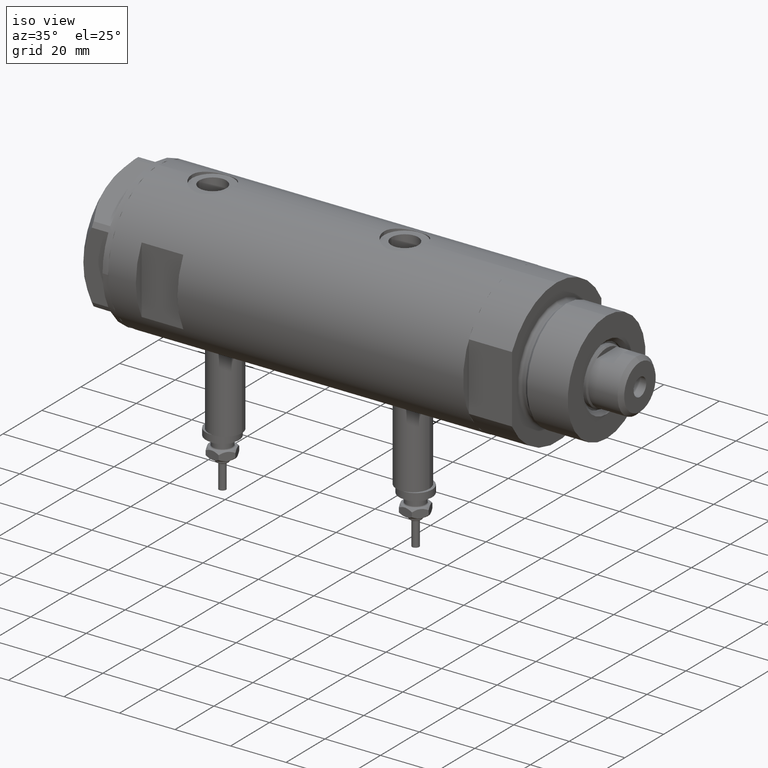
[diagram: clean part render]
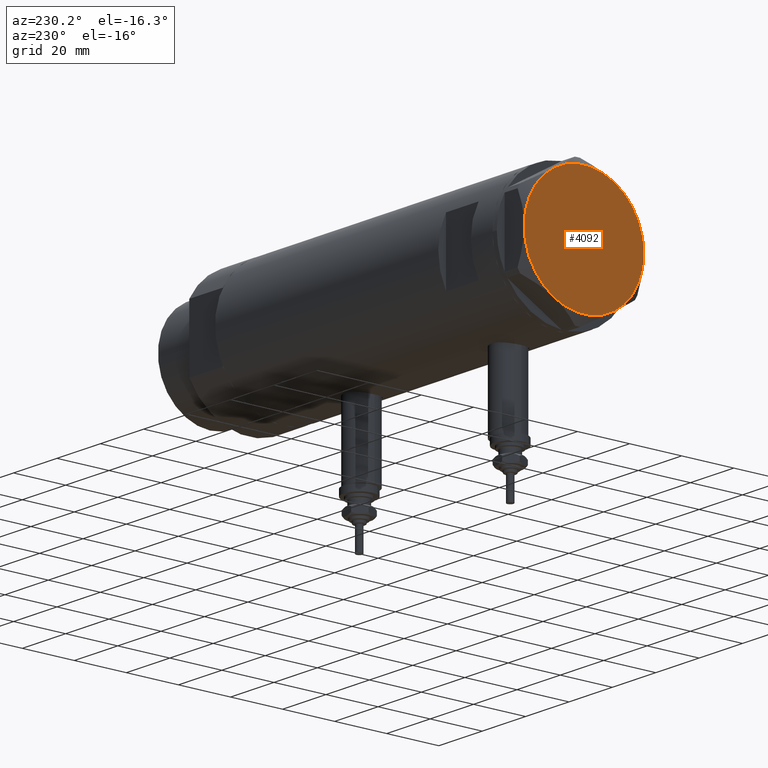
[diagram: tour spotlight — one face highlighted and labeled with its STEP entity id]
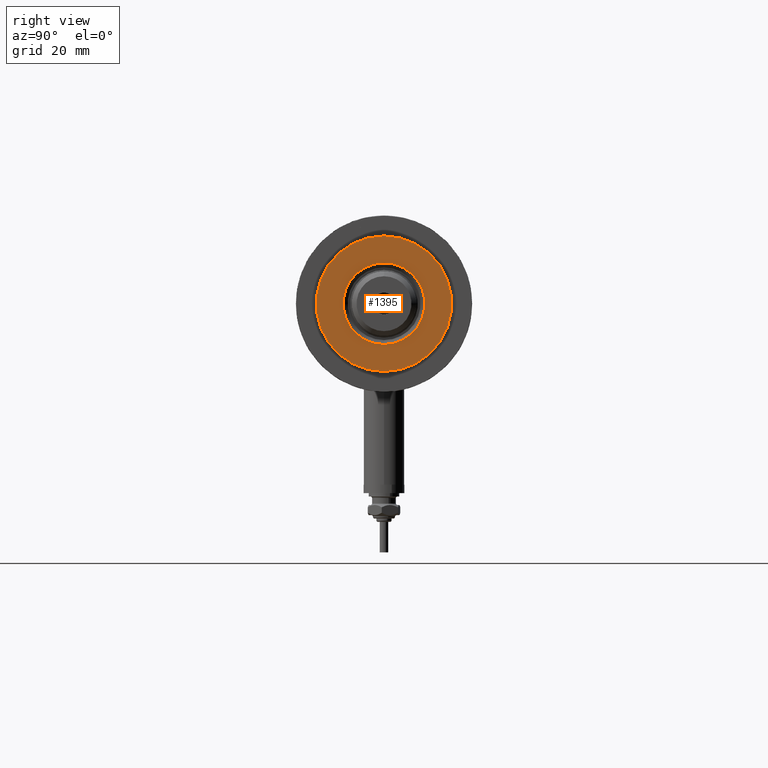
[diagram: tour spotlight — one face highlighted and labeled with its STEP entity id]
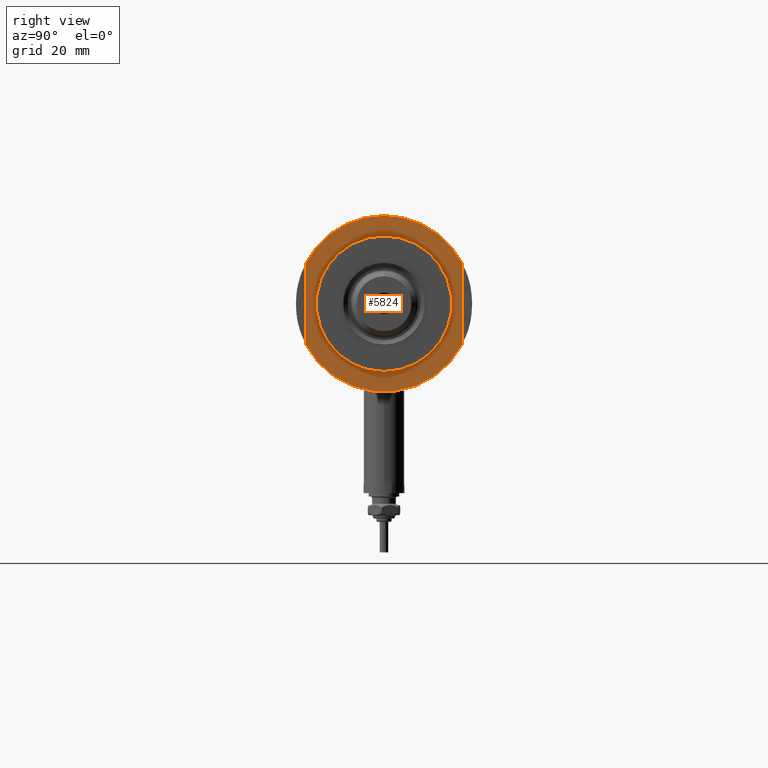
[diagram: tour spotlight — one face highlighted and labeled with its STEP entity id]
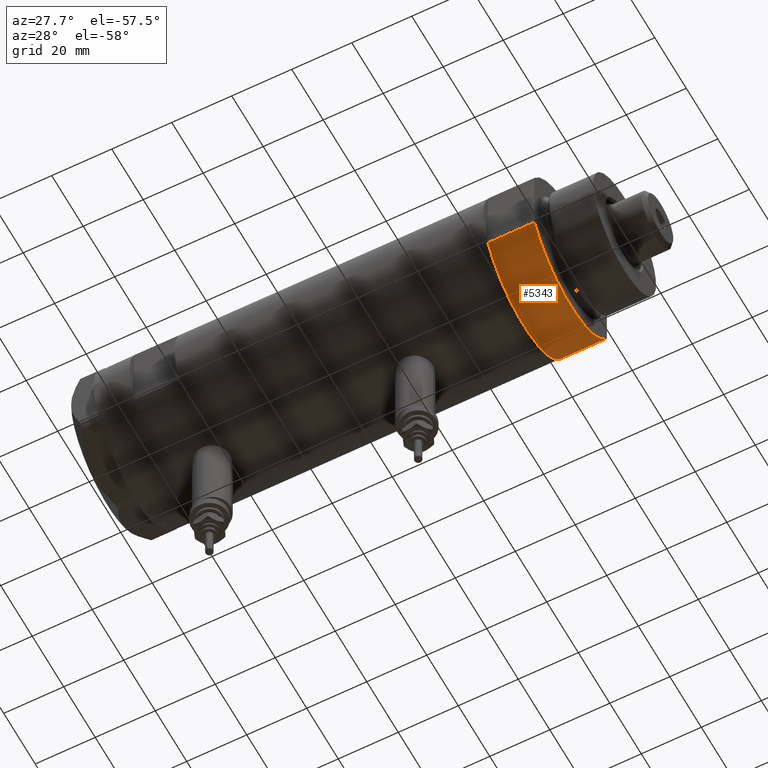
[diagram: tour spotlight — one face highlighted and labeled with its STEP entity id]
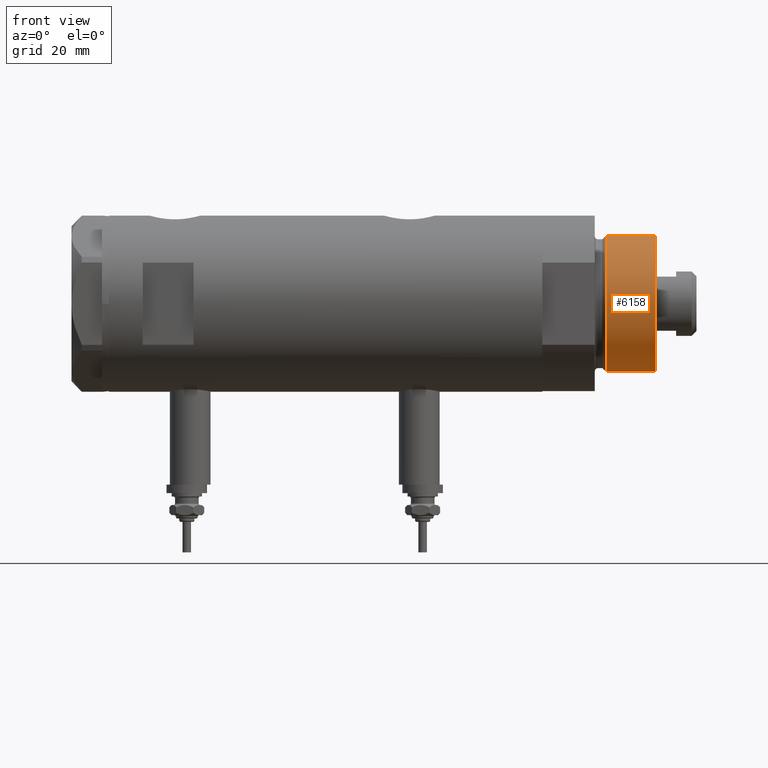
[diagram: tour spotlight — one face highlighted and labeled with its STEP entity id]
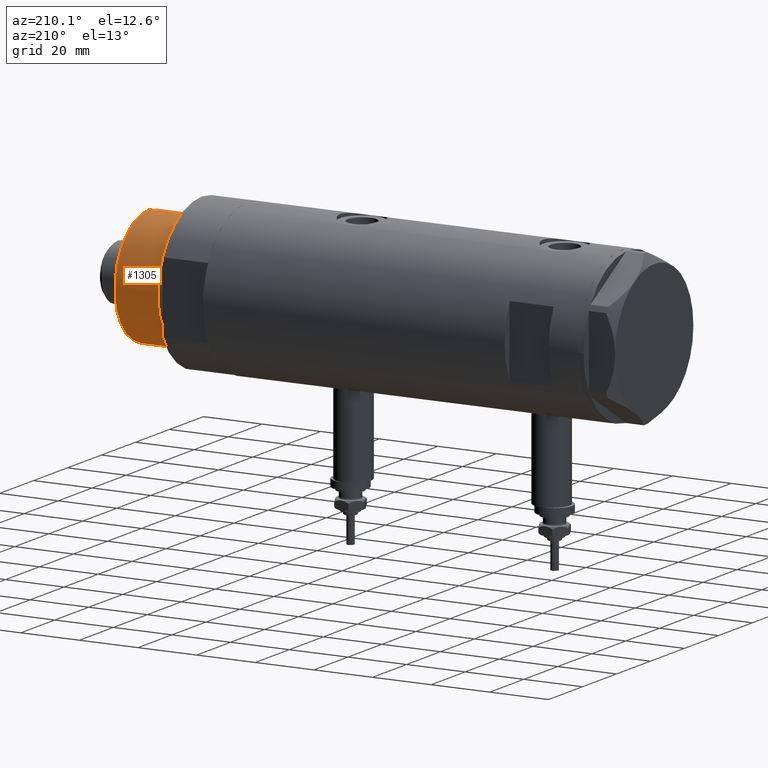
[diagram: tour spotlight — one face highlighted and labeled with its STEP entity id]
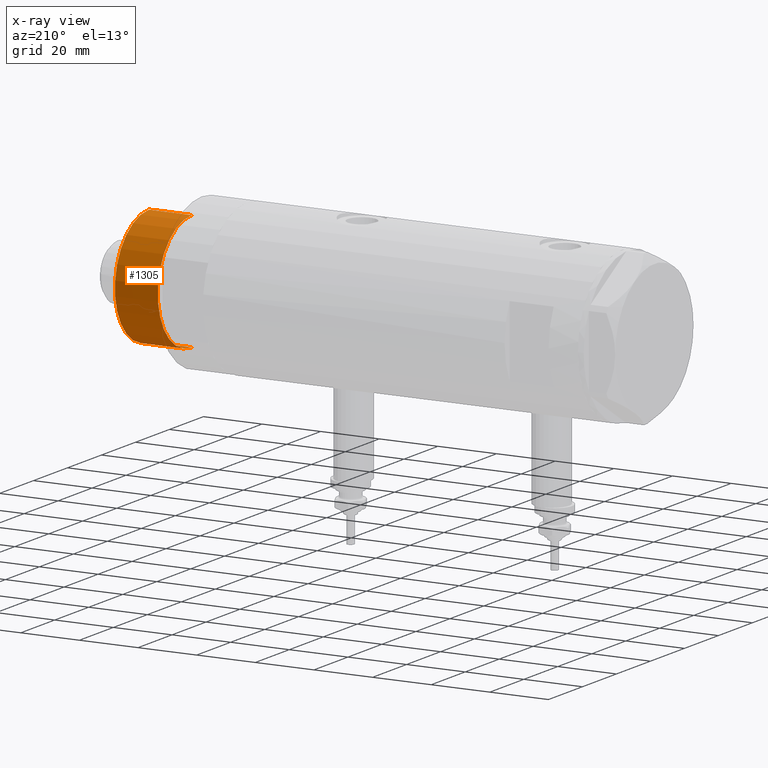
[diagram: x-ray of the same camera — body ghosted, this tour face saturated]
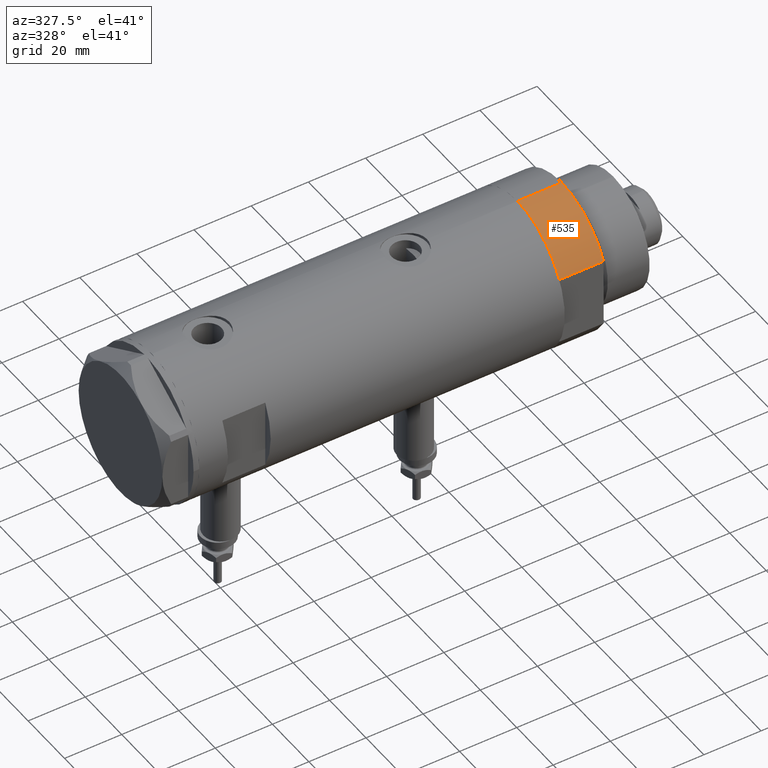
[diagram: tour spotlight — one face highlighted and labeled with its STEP entity id]
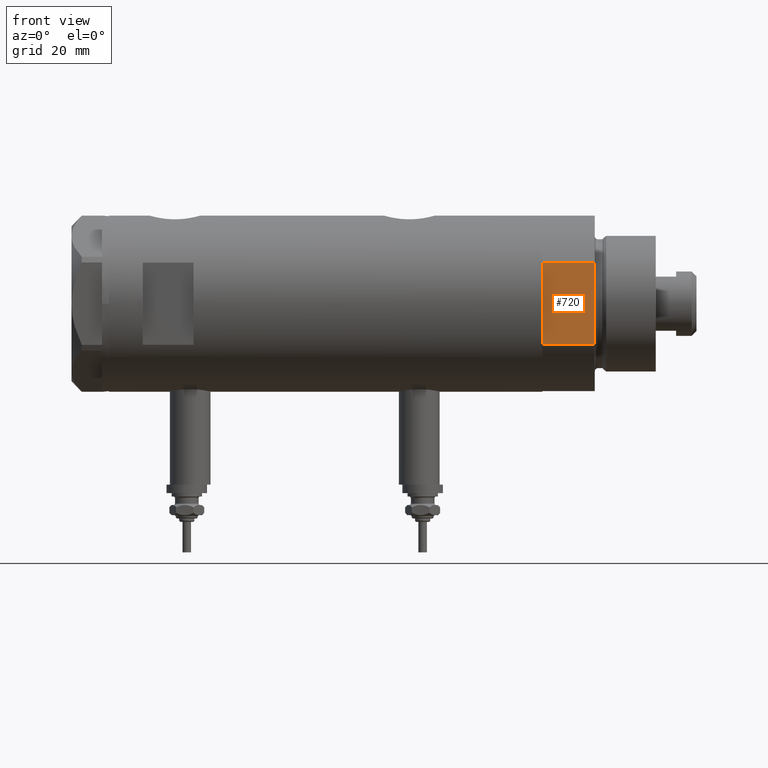
[diagram: tour spotlight — one face highlighted and labeled with its STEP entity id]
A machine part: a face-by-face anatomy tour. The part has 226 B-rep faces; the first image is the clean iso view, then the 8 largest visible faces are spotlighted one at a time (largest first), each with its STEP entity span.

Face 1 — auxiliary view, entity #4092. In plain terms, the highlighted planar face has unit normal (-1, -0, 0).
Definition (entity closure, byte-faithful):
#220 = PLANE ( 'NONE',  #4351 ) ;
#273 = VERTEX_POINT ( 'NONE', #5845 ) ;
#277 = VERTEX_POINT ( 'NONE', #1484 ) ;
#574 = FACE_OUTER_BOUND ( 'NONE', #5716, .T. ) ;
#755 = CARTESIAN_POINT ( 'NONE',  ( -11.50000000000004441, 19.91858428704211548, 9.000000000000000000 ) ) ;
#1076 = CARTESIAN_POINT ( 'NONE',  ( 0.000000000000000000, 0.000000000000000000, 9.000000000000000000 ) ) ;
#1104 = CIRCLE ( 'NONE', #4655, 23.00000000000004619 ) ;
#1193 = EDGE_CURVE ( 'NONE', #6245, #273, #1283, .T. ) ;
#1283 = CIRCLE ( 'NONE', #1575, 23.00000000000004619 ) ;
#1484 = CARTESIAN_POINT ( 'NONE',  ( 22.99999999999995026, 2.373657066004705010E-13, 9.000000000000000000 ) ) ;
#1575 = AXIS2_PLACEMENT_3D ( 'NONE', #5171, #5753, #1895 ) ;
#1840 = EDGE_CURVE ( 'NONE', #277, #2344, #2979, .T. ) ;
#1895 = DIRECTION ( 'NONE',  ( 1.000000000000000000, 0.000000000000000000, 0.000000000000000000 ) ) ;
#2176 = AXIS2_PLACEMENT_3D ( 'NONE', #4022, #4618, #4091 ) ;
#2202 = CARTESIAN_POINT ( 'NONE',  ( 0.000000000000000000, 0.000000000000000000, 9.000000000000000000 ) ) ;
#2227 = CIRCLE ( 'NONE', #5892, 23.00000000000004619 ) ;
#2295 = DIRECTION ( 'NONE',  ( 1.000000000000000000, 0.000000000000000000, -0.000000000000000000 ) ) ;
#2344 = VERTEX_POINT ( 'NONE', #2743 ) ;
#2430 = ORIENTED_EDGE ( 'NONE', *, *, #5894, .T. ) ;
#2648 = CARTESIAN_POINT ( 'NONE',  ( 0.000000000000000000, 0.000000000000000000, 9.000000000000000000 ) ) ;
#2743 = CARTESIAN_POINT ( 'NONE',  ( 11.49999999999990408, 19.91858428704219364, 9.000000000000000000 ) ) ;
#2979 = CIRCLE ( 'NONE', #2176, 23.00000000000004619 ) ;
#3208 = ORIENTED_EDGE ( 'NONE', *, *, #1840, .T. ) ;
#3508 = DIRECTION ( 'NONE',  ( 1.000000000000000000, 0.000000000000000000, 0.000000000000000000 ) ) ;
#3554 = DIRECTION ( 'NONE',  ( 0.000000000000000000, 0.000000000000000000, 1.000000000000000000 ) ) ;
#3633 = CIRCLE ( 'NONE', #6208, 23.00000000000004619 ) ;
#3671 = DIRECTION ( 'NONE',  ( 1.000000000000000000, 0.000000000000000000, 0.000000000000000000 ) ) ;
#3995 = CARTESIAN_POINT ( 'NONE',  ( 0.000000000000000000, 0.000000000000000000, 9.000000000000000000 ) ) ;
#4022 = CARTESIAN_POINT ( 'NONE',  ( 0.000000000000000000, 0.000000000000000000, 9.000000000000000000 ) ) ;
#4091 = DIRECTION ( 'NONE',  ( 1.000000000000000000, 0.000000000000000000, 0.000000000000000000 ) ) ;
#4092 = ADVANCED_FACE ( 'NONE', ( #574 ), #220, .T. ) ;
#4106 = DIRECTION ( 'NONE',  ( 0.000000000000000000, 0.000000000000000000, 1.000000000000000000 ) ) ;
#4139 = DIRECTION ( 'NONE',  ( 1.000000000000000000, 0.000000000000000000, 0.000000000000000000 ) ) ;
#4162 = DIRECTION ( 'NONE',  ( 0.000000000000000000, 0.000000000000000000, 1.000000000000000000 ) ) ;
#4178 = CARTESIAN_POINT ( 'NONE',  ( 0.000000000000000000, 0.000000000000000000, 9.000000000000000000 ) ) ;
#4270 = AXIS2_PLACEMENT_3D ( 'NONE', #3995, #5940, #3508 ) ;
#4351 = AXIS2_PLACEMENT_3D ( 'NONE', #2202, #4162, #2295 ) ;
#4483 = CARTESIAN_POINT ( 'NONE',  ( -11.49999999999990585, -19.91858428704219364, 9.000000000000000000 ) ) ;
#4618 = DIRECTION ( 'NONE',  ( 0.000000000000000000, 0.000000000000000000, 1.000000000000000000 ) ) ;
#4655 = AXIS2_PLACEMENT_3D ( 'NONE', #1076, #3554, #4839 ) ;
#4834 = VERTEX_POINT ( 'NONE', #755 ) ;
#4839 = DIRECTION ( 'NONE',  ( 1.000000000000000000, 0.000000000000000000, 0.000000000000000000 ) ) ;
#4904 = ORIENTED_EDGE ( 'NONE', *, *, #6260, .T. ) ;
#5063 = CIRCLE ( 'NONE', #4270, 23.00000000000004619 ) ;
#5093 = EDGE_CURVE ( 'NONE', #4834, #6050, #2227, .T. ) ;
#5171 = CARTESIAN_POINT ( 'NONE',  ( 0.000000000000000000, 0.000000000000000000, 9.000000000000000000 ) ) ;
#5228 = ORIENTED_EDGE ( 'NONE', *, *, #5535, .T. ) ;
#5535 = EDGE_CURVE ( 'NONE', #6050, #6245, #3633, .T. ) ;
#5575 = ORIENTED_EDGE ( 'NONE', *, *, #1193, .T. ) ;
#5716 = EDGE_LOOP ( 'NONE', ( #2430, #3208, #4904, #5876, #5228, #5575 ) ) ;
#5753 = DIRECTION ( 'NONE',  ( 0.000000000000000000, 0.000000000000000000, 1.000000000000000000 ) ) ;
#5845 = CARTESIAN_POINT ( 'NONE',  ( 11.50000000000018296, -19.91858428704203732, 9.000000000000000000 ) ) ;
#5876 = ORIENTED_EDGE ( 'NONE', *, *, #5093, .T. ) ;
#5892 = AXIS2_PLACEMENT_3D ( 'NONE', #4178, #4106, #4139 ) ;
#5894 = EDGE_CURVE ( 'NONE', #273, #277, #5063, .T. ) ;
#5940 = DIRECTION ( 'NONE',  ( 0.000000000000000000, 0.000000000000000000, 1.000000000000000000 ) ) ;
#6050 = VERTEX_POINT ( 'NONE', #6254 ) ;
#6111 = DIRECTION ( 'NONE',  ( 0.000000000000000000, 0.000000000000000000, 1.000000000000000000 ) ) ;
#6208 = AXIS2_PLACEMENT_3D ( 'NONE', #2648, #6111, #3671 ) ;
#6245 = VERTEX_POINT ( 'NONE', #4483 ) ;
#6254 = CARTESIAN_POINT ( 'NONE',  ( -23.00000000000004619, -8.112498833180673323E-14, 9.000000000000000000 ) ) ;
#6260 = EDGE_CURVE ( 'NONE', #2344, #4834, #1104, .T. ) ;

Face 2 — right view, entity #1395. In plain terms, the highlighted planar face has unit normal (1, 0, -0).
Definition (entity closure, byte-faithful):
#279 = AXIS2_PLACEMENT_3D ( 'NONE', #1357, #5204, #3279 ) ;
#341 = DIRECTION ( 'NONE',  ( 1.000000000000000000, 0.000000000000000000, 0.000000000000000000 ) ) ;
#425 = EDGE_CURVE ( 'NONE', #4596, #4561, #645, .T. ) ;
#441 = FACE_BOUND ( 'NONE', #3750, .T. ) ;
#619 = CARTESIAN_POINT ( 'NONE',  ( 0.000000000000000000, 0.000000000000000000, 33.50000000000000000 ) ) ;
#645 = CIRCLE ( 'NONE', #1162, 19.99999999999999645 ) ;
#874 = FACE_OUTER_BOUND ( 'NONE', #3715, .T. ) ;
#883 = CARTESIAN_POINT ( 'NONE',  ( -19.99999999999999645, 0.000000000000000000, 33.50000000000000000 ) ) ;
#953 = CARTESIAN_POINT ( 'NONE',  ( 0.000000000000000000, 0.000000000000000000, 33.50000000000000000 ) ) ;
#1152 = CARTESIAN_POINT ( 'NONE',  ( -12.05000000000000426, 1.475699392972560823E-15, 33.50000000000000000 ) ) ;
#1162 = AXIS2_PLACEMENT_3D ( 'NONE', #4381, #4346, #6302 ) ;
#1240 = VERTEX_POINT ( 'NONE', #1152 ) ;
#1357 = CARTESIAN_POINT ( 'NONE',  ( 0.000000000000000000, 0.000000000000000000, 33.50000000000000000 ) ) ;
#1395 = ADVANCED_FACE ( 'NONE', ( #441, #874 ), #4285, .T. ) ;
#1812 = CARTESIAN_POINT ( 'NONE',  ( 0.000000000000000000, 0.000000000000000000, 33.50000000000000000 ) ) ;
#2775 = CARTESIAN_POINT ( 'NONE',  ( 12.05000000000000426, 0.000000000000000000, 33.50000000000000000 ) ) ;
#2804 = DIRECTION ( 'NONE',  ( 1.000000000000000000, 0.000000000000000000, 0.000000000000000000 ) ) ;
#3007 = CIRCLE ( 'NONE', #5168, 12.05000000000000426 ) ;
#3011 = CIRCLE ( 'NONE', #279, 19.99999999999999645 ) ;
#3036 = ORIENTED_EDGE ( 'NONE', *, *, #6230, .T. ) ;
#3279 = DIRECTION ( 'NONE',  ( 1.000000000000000000, 0.000000000000000000, 0.000000000000000000 ) ) ;
#3420 = EDGE_CURVE ( 'NONE', #5195, #1240, #4141, .T. ) ;
#3715 = EDGE_LOOP ( 'NONE', ( #3036, #5461 ) ) ;
#3750 = EDGE_LOOP ( 'NONE', ( #4470, #4094 ) ) ;
#3806 = DIRECTION ( 'NONE',  ( -0.000000000000000000, -0.000000000000000000, -1.000000000000000000 ) ) ;
#4073 = EDGE_CURVE ( 'NONE', #1240, #5195, #3007, .T. ) ;
#4094 = ORIENTED_EDGE ( 'NONE', *, *, #4073, .T. ) ;
#4141 = CIRCLE ( 'NONE', #5864, 12.05000000000000426 ) ;
#4285 = PLANE ( 'NONE',  #6257 ) ;
#4346 = DIRECTION ( 'NONE',  ( 0.000000000000000000, 0.000000000000000000, 1.000000000000000000 ) ) ;
#4381 = CARTESIAN_POINT ( 'NONE',  ( 0.000000000000000000, 0.000000000000000000, 33.50000000000000000 ) ) ;
#4470 = ORIENTED_EDGE ( 'NONE', *, *, #3420, .T. ) ;
#4561 = VERTEX_POINT ( 'NONE', #883 ) ;
#4596 = VERTEX_POINT ( 'NONE', #5823 ) ;
#5168 = AXIS2_PLACEMENT_3D ( 'NONE', #619, #5240, #2804 ) ;
#5195 = VERTEX_POINT ( 'NONE', #2775 ) ;
#5204 = DIRECTION ( 'NONE',  ( 0.000000000000000000, 0.000000000000000000, 1.000000000000000000 ) ) ;
#5240 = DIRECTION ( 'NONE',  ( -0.000000000000000000, -0.000000000000000000, -1.000000000000000000 ) ) ;
#5272 = DIRECTION ( 'NONE',  ( 0.000000000000000000, 0.000000000000000000, 1.000000000000000000 ) ) ;
#5461 = ORIENTED_EDGE ( 'NONE', *, *, #425, .T. ) ;
#5823 = CARTESIAN_POINT ( 'NONE',  ( 19.99999999999999645, 2.449293598294706119E-15, 33.50000000000000000 ) ) ;
#5864 = AXIS2_PLACEMENT_3D ( 'NONE', #953, #3806, #341 ) ;
#6230 = EDGE_CURVE ( 'NONE', #4561, #4596, #3011, .T. ) ;
#6233 = DIRECTION ( 'NONE',  ( 1.000000000000000000, 0.000000000000000000, -0.000000000000000000 ) ) ;
#6257 = AXIS2_PLACEMENT_3D ( 'NONE', #1812, #5272, #6233 ) ;
#6302 = DIRECTION ( 'NONE',  ( 1.000000000000000000, 0.000000000000000000, 0.000000000000000000 ) ) ;

Face 3 — right view, entity #5824. In plain terms, the highlighted planar face has unit normal (1, 0, -0).
Definition (entity closure, byte-faithful):
#73 = FACE_OUTER_BOUND ( 'NONE', #5597, .T. ) ;
#76 = CIRCLE ( 'NONE', #4163, 26.00000000000000355 ) ;
#106 = CARTESIAN_POINT ( 'NONE',  ( 20.00000000000000000, 0.000000000000000000, 15.50000000000000000 ) ) ;
#226 = DIRECTION ( 'NONE',  ( 0.000000000000000000, 0.000000000000000000, 1.000000000000000000 ) ) ;
#233 = ORIENTED_EDGE ( 'NONE', *, *, #2287, .F. ) ;
#364 = CIRCLE ( 'NONE', #4739, 26.00000000000000355 ) ;
#468 = VERTEX_POINT ( 'NONE', #1654 ) ;
#502 = ORIENTED_EDGE ( 'NONE', *, *, #5999, .T. ) ;
#835 = ORIENTED_EDGE ( 'NONE', *, *, #3456, .T. ) ;
#1274 = CARTESIAN_POINT ( 'NONE',  ( 0.000000000000000000, 0.000000000000000000, 15.50000000000000000 ) ) ;
#1383 = EDGE_CURVE ( 'NONE', #2999, #3744, #2677, .T. ) ;
#1419 = AXIS2_PLACEMENT_3D ( 'NONE', #2183, #4957, #5477 ) ;
#1466 = EDGE_LOOP ( 'NONE', ( #5222, #4890 ) ) ;
#1546 = FACE_BOUND ( 'NONE', #1466, .T. ) ;
#1654 = CARTESIAN_POINT ( 'NONE',  ( -12.12435565298215323, -22.99999999999999645, 15.50000000000000000 ) ) ;
#1757 = DIRECTION ( 'NONE',  ( 1.000000000000000000, 0.000000000000000000, 0.000000000000000000 ) ) ;
#1771 = ORIENTED_EDGE ( 'NONE', *, *, #4424, .T. ) ;
#1793 = AXIS2_PLACEMENT_3D ( 'NONE', #2393, #4354, #5235 ) ;
#2014 = CIRCLE ( 'NONE', #5784, 26.00000000000000355 ) ;
#2183 = CARTESIAN_POINT ( 'NONE',  ( 0.000000000000000000, 0.000000000000000000, 15.50000000000000000 ) ) ;
#2287 = EDGE_CURVE ( 'NONE', #3274, #4881, #5045, .T. ) ;
#2371 = CARTESIAN_POINT ( 'NONE',  ( 12.12435565298215323, -22.99999999999999645, 15.50000000000000000 ) ) ;
#2383 = VERTEX_POINT ( 'NONE', #2371 ) ;
#2393 = CARTESIAN_POINT ( 'NONE',  ( 0.000000000000000000, 0.000000000000000000, 15.50000000000000000 ) ) ;
#2677 = CIRCLE ( 'NONE', #1793, 20.00000000000000000 ) ;
#2999 = VERTEX_POINT ( 'NONE', #4891 ) ;
#3274 = VERTEX_POINT ( 'NONE', #6060 ) ;
#3292 = CARTESIAN_POINT ( 'NONE',  ( -26.00000000000000355, 0.000000000000000000, 15.50000000000000000 ) ) ;
#3359 = DIRECTION ( 'NONE',  ( 0.000000000000000000, 0.000000000000000000, 1.000000000000000000 ) ) ;
#3456 = EDGE_CURVE ( 'NONE', #3274, #5580, #364, .T. ) ;
#3582 = ORIENTED_EDGE ( 'NONE', *, *, #3684, .F. ) ;
#3684 = EDGE_CURVE ( 'NONE', #2383, #468, #5835, .T. ) ;
#3744 = VERTEX_POINT ( 'NONE', #106 ) ;
#3962 = CARTESIAN_POINT ( 'NONE',  ( 0.000000000000000000, 0.000000000000000000, 15.50000000000000000 ) ) ;
#4034 = DIRECTION ( 'NONE',  ( 0.000000000000000000, 0.000000000000000000, 1.000000000000000000 ) ) ;
#4095 = CARTESIAN_POINT ( 'NONE',  ( -12.12435565298215145, 23.00000000000000355, 15.50000000000000000 ) ) ;
#4163 = AXIS2_PLACEMENT_3D ( 'NONE', #1274, #226, #1757 ) ;
#4273 = DIRECTION ( 'NONE',  ( 1.000000000000000000, 0.000000000000000000, 0.000000000000000000 ) ) ;
#4354 = DIRECTION ( 'NONE',  ( -0.000000000000000000, -0.000000000000000000, -1.000000000000000000 ) ) ;
#4424 = EDGE_CURVE ( 'NONE', #5580, #468, #2014, .T. ) ;
#4508 = PLANE ( 'NONE',  #5582 ) ;
#4509 = EDGE_CURVE ( 'NONE', #3744, #2999, #6089, .T. ) ;
#4571 = DIRECTION ( 'NONE',  ( 1.000000000000000000, 0.000000000000000000, 0.000000000000000000 ) ) ;
#4574 = DIRECTION ( 'NONE',  ( 1.000000000000000000, 0.000000000000000000, -0.000000000000000000 ) ) ;
#4626 = VECTOR ( 'NONE', #4571, 1000.000000000000000 ) ;
#4737 = CARTESIAN_POINT ( 'NONE',  ( 0.000000000000000000, 0.000000000000000000, 15.50000000000000000 ) ) ;
#4739 = AXIS2_PLACEMENT_3D ( 'NONE', #4737, #5736, #4273 ) ;
#4881 = VERTEX_POINT ( 'NONE', #5143 ) ;
#4890 = ORIENTED_EDGE ( 'NONE', *, *, #1383, .T. ) ;
#4891 = CARTESIAN_POINT ( 'NONE',  ( -20.00000000000000000, 2.449293598294706513E-15, 15.50000000000000000 ) ) ;
#4957 = DIRECTION ( 'NONE',  ( -0.000000000000000000, -0.000000000000000000, -1.000000000000000000 ) ) ;
#5045 = LINE ( 'NONE', #4095, #4626 ) ;
#5143 = CARTESIAN_POINT ( 'NONE',  ( 12.12435565298214790, 23.00000000000000355, 15.50000000000000000 ) ) ;
#5222 = ORIENTED_EDGE ( 'NONE', *, *, #4509, .T. ) ;
#5235 = DIRECTION ( 'NONE',  ( 1.000000000000000000, 0.000000000000000000, 0.000000000000000000 ) ) ;
#5267 = CARTESIAN_POINT ( 'NONE',  ( -12.12435565298215145, -22.99999999999999645, 15.50000000000000000 ) ) ;
#5315 = DIRECTION ( 'NONE',  ( 1.000000000000000000, 0.000000000000000000, 0.000000000000000000 ) ) ;
#5359 = VECTOR ( 'NONE', #5811, 1000.000000000000000 ) ;
#5477 = DIRECTION ( 'NONE',  ( 1.000000000000000000, 0.000000000000000000, 0.000000000000000000 ) ) ;
#5580 = VERTEX_POINT ( 'NONE', #3292 ) ;
#5582 = AXIS2_PLACEMENT_3D ( 'NONE', #3962, #4034, #4574 ) ;
#5597 = EDGE_LOOP ( 'NONE', ( #3582, #502, #233, #835, #1771 ) ) ;
#5736 = DIRECTION ( 'NONE',  ( 0.000000000000000000, 0.000000000000000000, 1.000000000000000000 ) ) ;
#5784 = AXIS2_PLACEMENT_3D ( 'NONE', #5802, #3359, #5315 ) ;
#5802 = CARTESIAN_POINT ( 'NONE',  ( 0.000000000000000000, 0.000000000000000000, 15.50000000000000000 ) ) ;
#5811 = DIRECTION ( 'NONE',  ( -1.000000000000000000, -0.000000000000000000, -0.000000000000000000 ) ) ;
#5824 = ADVANCED_FACE ( 'NONE', ( #1546, #73 ), #4508, .T. ) ;
#5835 = LINE ( 'NONE', #5267, #5359 ) ;
#5999 = EDGE_CURVE ( 'NONE', #2383, #4881, #76, .T. ) ;
#6060 = CARTESIAN_POINT ( 'NONE',  ( -12.12435565298214613, 23.00000000000000355, 15.50000000000000000 ) ) ;
#6089 = CIRCLE ( 'NONE', #1419, 20.00000000000000000 ) ;

Face 4 — auxiliary view, entity #5343. In plain terms, the highlighted cylindrical surface (partial cylindrical patch) has radius 26 mm, axis along (-1, -0, 0).
Definition (entity closure, byte-faithful):
#76 = CIRCLE ( 'NONE', #4163, 26.00000000000000355 ) ;
#113 = DIRECTION ( 'NONE',  ( -1.000000000000000000, 0.000000000000000000, 0.000000000000000000 ) ) ;
#183 = ORIENTED_EDGE ( 'NONE', *, *, #1867, .T. ) ;
#226 = DIRECTION ( 'NONE',  ( 0.000000000000000000, 0.000000000000000000, 1.000000000000000000 ) ) ;
#267 = DIRECTION ( 'NONE',  ( -0.000000000000000000, -0.000000000000000000, 1.000000000000000000 ) ) ;
#671 = FACE_OUTER_BOUND ( 'NONE', #3772, .T. ) ;
#756 = CARTESIAN_POINT ( 'NONE',  ( 12.12435565298215323, 23.00000000000000355, 0.000000000000000000 ) ) ;
#1000 = ORIENTED_EDGE ( 'NONE', *, *, #3878, .T. ) ;
#1065 = AXIS2_PLACEMENT_3D ( 'NONE', #5000, #5036, #3116 ) ;
#1088 = EDGE_CURVE ( 'NONE', #6307, #2383, #5564, .T. ) ;
#1179 = ORIENTED_EDGE ( 'NONE', *, *, #1088, .F. ) ;
#1274 = CARTESIAN_POINT ( 'NONE',  ( 0.000000000000000000, 0.000000000000000000, 15.50000000000000000 ) ) ;
#1753 = DIRECTION ( 'NONE',  ( -0.000000000000000000, -0.000000000000000000, 1.000000000000000000 ) ) ;
#1757 = DIRECTION ( 'NONE',  ( 1.000000000000000000, 0.000000000000000000, 0.000000000000000000 ) ) ;
#1867 = EDGE_CURVE ( 'NONE', #6307, #3113, #6058, .T. ) ;
#2371 = CARTESIAN_POINT ( 'NONE',  ( 12.12435565298215323, -22.99999999999999645, 15.50000000000000000 ) ) ;
#2383 = VERTEX_POINT ( 'NONE', #2371 ) ;
#2532 = DIRECTION ( 'NONE',  ( -0.000000000000000000, -0.000000000000000000, -1.000000000000000000 ) ) ;
#2558 = CARTESIAN_POINT ( 'NONE',  ( 12.12435565298215323, -22.99999999999999645, 0.000000000000000000 ) ) ;
#2879 = VECTOR ( 'NONE', #1753, 1000.000000000000000 ) ;
#3113 = VERTEX_POINT ( 'NONE', #4136 ) ;
#3116 = DIRECTION ( 'NONE',  ( 1.000000000000000000, 0.000000000000000000, 0.000000000000000000 ) ) ;
#3772 = EDGE_LOOP ( 'NONE', ( #5982, #1179, #183, #1000 ) ) ;
#3878 = EDGE_CURVE ( 'NONE', #3113, #4881, #5112, .T. ) ;
#4014 = CYLINDRICAL_SURFACE ( 'NONE', #4462, 26.00000000000000355 ) ;
#4136 = CARTESIAN_POINT ( 'NONE',  ( 12.12435565298214080, 23.00000000000000355, 0.000000000000000000 ) ) ;
#4163 = AXIS2_PLACEMENT_3D ( 'NONE', #1274, #226, #1757 ) ;
#4437 = VECTOR ( 'NONE', #267, 1000.000000000000000 ) ;
#4462 = AXIS2_PLACEMENT_3D ( 'NONE', #5956, #2532, #113 ) ;
#4881 = VERTEX_POINT ( 'NONE', #5143 ) ;
#5000 = CARTESIAN_POINT ( 'NONE',  ( 0.000000000000000000, 0.000000000000000000, 0.000000000000000000 ) ) ;
#5036 = DIRECTION ( 'NONE',  ( 0.000000000000000000, 0.000000000000000000, 1.000000000000000000 ) ) ;
#5112 = LINE ( 'NONE', #756, #4437 ) ;
#5143 = CARTESIAN_POINT ( 'NONE',  ( 12.12435565298214790, 23.00000000000000355, 15.50000000000000000 ) ) ;
#5343 = ADVANCED_FACE ( 'NONE', ( #671 ), #4014, .T. ) ;
#5506 = CARTESIAN_POINT ( 'NONE',  ( 12.12435565298215323, -22.99999999999999645, 0.000000000000000000 ) ) ;
#5564 = LINE ( 'NONE', #5506, #2879 ) ;
#5956 = CARTESIAN_POINT ( 'NONE',  ( 0.000000000000000000, 0.000000000000000000, 15.50000000000000000 ) ) ;
#5982 = ORIENTED_EDGE ( 'NONE', *, *, #5999, .F. ) ;
#5999 = EDGE_CURVE ( 'NONE', #2383, #4881, #76, .T. ) ;
#6058 = CIRCLE ( 'NONE', #1065, 26.00000000000000355 ) ;
#6307 = VERTEX_POINT ( 'NONE', #2558 ) ;

Face 5 — front view, entity #6158. In plain terms, the highlighted cylindrical surface (partial cylindrical patch) has radius 20 mm, axis along (-1, -0, 0).
Definition (entity closure, byte-faithful):
#29 = CYLINDRICAL_SURFACE ( 'NONE', #6194, 19.99999999999999645 ) ;
#240 = CARTESIAN_POINT ( 'NONE',  ( -19.99999999999999645, 0.000000000000000000, 18.87384048104053846 ) ) ;
#279 = AXIS2_PLACEMENT_3D ( 'NONE', #1357, #5204, #3279 ) ;
#547 = CARTESIAN_POINT ( 'NONE',  ( 0.000000000000000000, 0.000000000000000000, 18.87384048104053846 ) ) ;
#571 = EDGE_CURVE ( 'NONE', #1346, #3937, #6047, .T. ) ;
#669 = VECTOR ( 'NONE', #5777, 1000.000000000000000 ) ;
#883 = CARTESIAN_POINT ( 'NONE',  ( -19.99999999999999645, 0.000000000000000000, 33.50000000000000000 ) ) ;
#1346 = VERTEX_POINT ( 'NONE', #240 ) ;
#1357 = CARTESIAN_POINT ( 'NONE',  ( 0.000000000000000000, 0.000000000000000000, 33.50000000000000000 ) ) ;
#1626 = CARTESIAN_POINT ( 'NONE',  ( -19.99999999999999645, 0.000000000000000000, 33.50000000000000000 ) ) ;
#1889 = CARTESIAN_POINT ( 'NONE',  ( 19.99999999999999645, 2.449293598294706119E-15, 33.50000000000000000 ) ) ;
#2018 = DIRECTION ( 'NONE',  ( -1.000000000000000000, 0.000000000000000000, 0.000000000000000000 ) ) ;
#2122 = EDGE_CURVE ( 'NONE', #4596, #3937, #6252, .T. ) ;
#2477 = CARTESIAN_POINT ( 'NONE',  ( 0.000000000000000000, 0.000000000000000000, 33.50000000000000000 ) ) ;
#3011 = CIRCLE ( 'NONE', #279, 19.99999999999999645 ) ;
#3015 = ORIENTED_EDGE ( 'NONE', *, *, #6230, .F. ) ;
#3176 = EDGE_LOOP ( 'NONE', ( #4902, #3015, #5672, #3187 ) ) ;
#3187 = ORIENTED_EDGE ( 'NONE', *, *, #571, .T. ) ;
#3279 = DIRECTION ( 'NONE',  ( 1.000000000000000000, 0.000000000000000000, 0.000000000000000000 ) ) ;
#3312 = VECTOR ( 'NONE', #6118, 1000.000000000000000 ) ;
#3672 = DIRECTION ( 'NONE',  ( 1.000000000000000000, 0.000000000000000000, 0.000000000000000000 ) ) ;
#3803 = EDGE_CURVE ( 'NONE', #4561, #1346, #6044, .T. ) ;
#3937 = VERTEX_POINT ( 'NONE', #4876 ) ;
#3953 = DIRECTION ( 'NONE',  ( -0.000000000000000000, -0.000000000000000000, -1.000000000000000000 ) ) ;
#4561 = VERTEX_POINT ( 'NONE', #883 ) ;
#4596 = VERTEX_POINT ( 'NONE', #5823 ) ;
#4876 = CARTESIAN_POINT ( 'NONE',  ( 19.99999999999999645, 2.449293598294706119E-15, 18.87384048104053846 ) ) ;
#4902 = ORIENTED_EDGE ( 'NONE', *, *, #2122, .F. ) ;
#5020 = AXIS2_PLACEMENT_3D ( 'NONE', #547, #5605, #3672 ) ;
#5204 = DIRECTION ( 'NONE',  ( 0.000000000000000000, 0.000000000000000000, 1.000000000000000000 ) ) ;
#5459 = FACE_OUTER_BOUND ( 'NONE', #3176, .T. ) ;
#5605 = DIRECTION ( 'NONE',  ( -0.000000000000000000, -0.000000000000000000, 1.000000000000000000 ) ) ;
#5672 = ORIENTED_EDGE ( 'NONE', *, *, #3803, .T. ) ;
#5777 = DIRECTION ( 'NONE',  ( -0.000000000000000000, -0.000000000000000000, -1.000000000000000000 ) ) ;
#5823 = CARTESIAN_POINT ( 'NONE',  ( 19.99999999999999645, 2.449293598294706119E-15, 33.50000000000000000 ) ) ;
#6044 = LINE ( 'NONE', #1626, #3312 ) ;
#6047 = CIRCLE ( 'NONE', #5020, 19.99999999999999645 ) ;
#6118 = DIRECTION ( 'NONE',  ( -0.000000000000000000, -0.000000000000000000, -1.000000000000000000 ) ) ;
#6158 = ADVANCED_FACE ( 'NONE', ( #5459 ), #29, .T. ) ;
#6194 = AXIS2_PLACEMENT_3D ( 'NONE', #2477, #3953, #2018 ) ;
#6230 = EDGE_CURVE ( 'NONE', #4561, #4596, #3011, .T. ) ;
#6252 = LINE ( 'NONE', #1889, #669 ) ;

Face 6 — auxiliary view, entity #1305. An x-ray twin of the same camera follows (body ghosted, this face saturated) — the face is partly hidden behind the body. In plain terms, the highlighted cylindrical surface (partial cylindrical patch) has radius 20 mm, axis along (-1, -0, 0).
Definition (entity closure, byte-faithful):
#23 = DIRECTION ( 'NONE',  ( -0.000000000000000000, -0.000000000000000000, 1.000000000000000000 ) ) ;
#163 = EDGE_CURVE ( 'NONE', #3937, #1346, #2455, .T. ) ;
#240 = CARTESIAN_POINT ( 'NONE',  ( -19.99999999999999645, 0.000000000000000000, 18.87384048104053846 ) ) ;
#425 = EDGE_CURVE ( 'NONE', #4596, #4561, #645, .T. ) ;
#645 = CIRCLE ( 'NONE', #1162, 19.99999999999999645 ) ;
#669 = VECTOR ( 'NONE', #5777, 1000.000000000000000 ) ;
#883 = CARTESIAN_POINT ( 'NONE',  ( -19.99999999999999645, 0.000000000000000000, 33.50000000000000000 ) ) ;
#1162 = AXIS2_PLACEMENT_3D ( 'NONE', #4381, #4346, #6302 ) ;
#1258 = DIRECTION ( 'NONE',  ( -1.000000000000000000, 0.000000000000000000, 0.000000000000000000 ) ) ;
#1305 = ADVANCED_FACE ( 'NONE', ( #2692 ), #1796, .T. ) ;
#1346 = VERTEX_POINT ( 'NONE', #240 ) ;
#1355 = ORIENTED_EDGE ( 'NONE', *, *, #425, .F. ) ;
#1626 = CARTESIAN_POINT ( 'NONE',  ( -19.99999999999999645, 0.000000000000000000, 33.50000000000000000 ) ) ;
#1796 = CYLINDRICAL_SURFACE ( 'NONE', #5024, 19.99999999999999645 ) ;
#1889 = CARTESIAN_POINT ( 'NONE',  ( 19.99999999999999645, 2.449293598294706119E-15, 33.50000000000000000 ) ) ;
#1955 = CARTESIAN_POINT ( 'NONE',  ( 0.000000000000000000, 0.000000000000000000, 18.87384048104053846 ) ) ;
#2122 = EDGE_CURVE ( 'NONE', #4596, #3937, #6252, .T. ) ;
#2377 = DIRECTION ( 'NONE',  ( 1.000000000000000000, 0.000000000000000000, 0.000000000000000000 ) ) ;
#2455 = CIRCLE ( 'NONE', #4002, 19.99999999999999645 ) ;
#2692 = FACE_OUTER_BOUND ( 'NONE', #6279, .T. ) ;
#3299 = CARTESIAN_POINT ( 'NONE',  ( 0.000000000000000000, 0.000000000000000000, 33.50000000000000000 ) ) ;
#3312 = VECTOR ( 'NONE', #6118, 1000.000000000000000 ) ;
#3803 = EDGE_CURVE ( 'NONE', #4561, #1346, #6044, .T. ) ;
#3937 = VERTEX_POINT ( 'NONE', #4876 ) ;
#4002 = AXIS2_PLACEMENT_3D ( 'NONE', #1955, #23, #2377 ) ;
#4109 = ORIENTED_EDGE ( 'NONE', *, *, #163, .T. ) ;
#4212 = DIRECTION ( 'NONE',  ( -0.000000000000000000, -0.000000000000000000, -1.000000000000000000 ) ) ;
#4346 = DIRECTION ( 'NONE',  ( 0.000000000000000000, 0.000000000000000000, 1.000000000000000000 ) ) ;
#4381 = CARTESIAN_POINT ( 'NONE',  ( 0.000000000000000000, 0.000000000000000000, 33.50000000000000000 ) ) ;
#4561 = VERTEX_POINT ( 'NONE', #883 ) ;
#4596 = VERTEX_POINT ( 'NONE', #5823 ) ;
#4876 = CARTESIAN_POINT ( 'NONE',  ( 19.99999999999999645, 2.449293598294706119E-15, 18.87384048104053846 ) ) ;
#5024 = AXIS2_PLACEMENT_3D ( 'NONE', #3299, #4212, #1258 ) ;
#5630 = ORIENTED_EDGE ( 'NONE', *, *, #2122, .T. ) ;
#5777 = DIRECTION ( 'NONE',  ( -0.000000000000000000, -0.000000000000000000, -1.000000000000000000 ) ) ;
#5823 = CARTESIAN_POINT ( 'NONE',  ( 19.99999999999999645, 2.449293598294706119E-15, 33.50000000000000000 ) ) ;
#6044 = LINE ( 'NONE', #1626, #3312 ) ;
#6118 = DIRECTION ( 'NONE',  ( -0.000000000000000000, -0.000000000000000000, -1.000000000000000000 ) ) ;
#6252 = LINE ( 'NONE', #1889, #669 ) ;
#6279 = EDGE_LOOP ( 'NONE', ( #1355, #5630, #4109, #6326 ) ) ;
#6302 = DIRECTION ( 'NONE',  ( 1.000000000000000000, 0.000000000000000000, 0.000000000000000000 ) ) ;
#6326 = ORIENTED_EDGE ( 'NONE', *, *, #3803, .F. ) ;

Face 7 — auxiliary view, entity #535. In plain terms, the highlighted cylindrical surface (partial cylindrical patch) has radius 26 mm, axis along (-1, -0, 0).
Definition (entity closure, byte-faithful):
#250 = LINE ( 'NONE', #4592, #5342 ) ;
#259 = CARTESIAN_POINT ( 'NONE',  ( -26.00000000000000355, 0.000000000000000000, 0.000000000000000000 ) ) ;
#393 = DIRECTION ( 'NONE',  ( 0.000000000000000000, 0.000000000000000000, 1.000000000000000000 ) ) ;
#468 = VERTEX_POINT ( 'NONE', #1654 ) ;
#535 = ADVANCED_FACE ( 'NONE', ( #1616 ), #2055, .T. ) ;
#748 = CARTESIAN_POINT ( 'NONE',  ( -12.12435565298215501, -22.99999999999999645, 0.000000000000000000 ) ) ;
#1141 = VERTEX_POINT ( 'NONE', #259 ) ;
#1465 = ORIENTED_EDGE ( 'NONE', *, *, #4424, .F. ) ;
#1544 = CARTESIAN_POINT ( 'NONE',  ( 0.000000000000000000, 0.000000000000000000, 15.50000000000000000 ) ) ;
#1616 = FACE_OUTER_BOUND ( 'NONE', #4275, .T. ) ;
#1654 = CARTESIAN_POINT ( 'NONE',  ( -12.12435565298215323, -22.99999999999999645, 15.50000000000000000 ) ) ;
#1673 = DIRECTION ( 'NONE',  ( -0.000000000000000000, -0.000000000000000000, 1.000000000000000000 ) ) ;
#1768 = EDGE_CURVE ( 'NONE', #2656, #468, #250, .T. ) ;
#1931 = LINE ( 'NONE', #5819, #5462 ) ;
#2014 = CIRCLE ( 'NONE', #5784, 26.00000000000000355 ) ;
#2055 = CYLINDRICAL_SURFACE ( 'NONE', #2770, 26.00000000000000355 ) ;
#2145 = DIRECTION ( 'NONE',  ( -0.000000000000000000, -0.000000000000000000, -1.000000000000000000 ) ) ;
#2656 = VERTEX_POINT ( 'NONE', #748 ) ;
#2770 = AXIS2_PLACEMENT_3D ( 'NONE', #1544, #2145, #6013 ) ;
#2963 = ORIENTED_EDGE ( 'NONE', *, *, #1768, .T. ) ;
#3292 = CARTESIAN_POINT ( 'NONE',  ( -26.00000000000000355, 0.000000000000000000, 15.50000000000000000 ) ) ;
#3359 = DIRECTION ( 'NONE',  ( 0.000000000000000000, 0.000000000000000000, 1.000000000000000000 ) ) ;
#3376 = DIRECTION ( 'NONE',  ( -0.000000000000000000, -0.000000000000000000, -1.000000000000000000 ) ) ;
#3610 = EDGE_CURVE ( 'NONE', #5580, #1141, #1931, .T. ) ;
#3710 = ORIENTED_EDGE ( 'NONE', *, *, #5182, .T. ) ;
#3902 = ORIENTED_EDGE ( 'NONE', *, *, #3610, .T. ) ;
#4275 = EDGE_LOOP ( 'NONE', ( #1465, #3902, #3710, #2963 ) ) ;
#4344 = DIRECTION ( 'NONE',  ( 1.000000000000000000, 0.000000000000000000, 0.000000000000000000 ) ) ;
#4424 = EDGE_CURVE ( 'NONE', #5580, #468, #2014, .T. ) ;
#4592 = CARTESIAN_POINT ( 'NONE',  ( -12.12435565298215145, -22.99999999999999645, 0.000000000000000000 ) ) ;
#4968 = CIRCLE ( 'NONE', #5492, 26.00000000000000355 ) ;
#5182 = EDGE_CURVE ( 'NONE', #1141, #2656, #4968, .T. ) ;
#5315 = DIRECTION ( 'NONE',  ( 1.000000000000000000, 0.000000000000000000, 0.000000000000000000 ) ) ;
#5342 = VECTOR ( 'NONE', #1673, 1000.000000000000000 ) ;
#5462 = VECTOR ( 'NONE', #3376, 1000.000000000000000 ) ;
#5492 = AXIS2_PLACEMENT_3D ( 'NONE', #5668, #393, #4344 ) ;
#5580 = VERTEX_POINT ( 'NONE', #3292 ) ;
#5668 = CARTESIAN_POINT ( 'NONE',  ( 0.000000000000000000, 0.000000000000000000, 0.000000000000000000 ) ) ;
#5784 = AXIS2_PLACEMENT_3D ( 'NONE', #5802, #3359, #5315 ) ;
#5802 = CARTESIAN_POINT ( 'NONE',  ( 0.000000000000000000, 0.000000000000000000, 15.50000000000000000 ) ) ;
#5819 = CARTESIAN_POINT ( 'NONE',  ( -26.00000000000000355, 0.000000000000000000, 15.50000000000000000 ) ) ;
#6013 = DIRECTION ( 'NONE',  ( -1.000000000000000000, 0.000000000000000000, 0.000000000000000000 ) ) ;

Face 8 — front view, entity #720. In plain terms, the highlighted planar face has unit normal (-0, 1, 0).
Definition (entity closure, byte-faithful):
#117 = FACE_OUTER_BOUND ( 'NONE', #5934, .T. ) ;
#212 = DIRECTION ( 'NONE',  ( -0.000000000000000000, 1.000000000000000000, 0.000000000000000000 ) ) ;
#250 = LINE ( 'NONE', #4592, #5342 ) ;
#468 = VERTEX_POINT ( 'NONE', #1654 ) ;
#720 = ADVANCED_FACE ( 'NONE', ( #117 ), #5495, .F. ) ;
#740 = ORIENTED_EDGE ( 'NONE', *, *, #3311, .F. ) ;
#748 = CARTESIAN_POINT ( 'NONE',  ( -12.12435565298215501, -22.99999999999999645, 0.000000000000000000 ) ) ;
#1088 = EDGE_CURVE ( 'NONE', #6307, #2383, #5564, .T. ) ;
#1462 = ORIENTED_EDGE ( 'NONE', *, *, #1088, .T. ) ;
#1654 = CARTESIAN_POINT ( 'NONE',  ( -12.12435565298215323, -22.99999999999999645, 15.50000000000000000 ) ) ;
#1672 = CARTESIAN_POINT ( 'NONE',  ( -12.12435565298215145, -22.99999999999999645, 0.000000000000000000 ) ) ;
#1673 = DIRECTION ( 'NONE',  ( -0.000000000000000000, -0.000000000000000000, 1.000000000000000000 ) ) ;
#1753 = DIRECTION ( 'NONE',  ( -0.000000000000000000, -0.000000000000000000, 1.000000000000000000 ) ) ;
#1768 = EDGE_CURVE ( 'NONE', #2656, #468, #250, .T. ) ;
#2274 = ORIENTED_EDGE ( 'NONE', *, *, #1768, .F. ) ;
#2371 = CARTESIAN_POINT ( 'NONE',  ( 12.12435565298215323, -22.99999999999999645, 15.50000000000000000 ) ) ;
#2383 = VERTEX_POINT ( 'NONE', #2371 ) ;
#2558 = CARTESIAN_POINT ( 'NONE',  ( 12.12435565298215323, -22.99999999999999645, 0.000000000000000000 ) ) ;
#2635 = CARTESIAN_POINT ( 'NONE',  ( -12.12435565298215145, -22.99999999999999645, 0.000000000000000000 ) ) ;
#2656 = VERTEX_POINT ( 'NONE', #748 ) ;
#2730 = LINE ( 'NONE', #2635, #5670 ) ;
#2879 = VECTOR ( 'NONE', #1753, 1000.000000000000000 ) ;
#3075 = DIRECTION ( 'NONE',  ( -1.000000000000000000, -0.000000000000000000, -0.000000000000000000 ) ) ;
#3114 = DIRECTION ( 'NONE',  ( 0.000000000000000000, -0.000000000000000000, 1.000000000000000000 ) ) ;
#3311 = EDGE_CURVE ( 'NONE', #6307, #2656, #2730, .T. ) ;
#3684 = EDGE_CURVE ( 'NONE', #2383, #468, #5835, .T. ) ;
#4592 = CARTESIAN_POINT ( 'NONE',  ( -12.12435565298215145, -22.99999999999999645, 0.000000000000000000 ) ) ;
#5016 = AXIS2_PLACEMENT_3D ( 'NONE', #1672, #212, #3114 ) ;
#5267 = CARTESIAN_POINT ( 'NONE',  ( -12.12435565298215145, -22.99999999999999645, 15.50000000000000000 ) ) ;
#5342 = VECTOR ( 'NONE', #1673, 1000.000000000000000 ) ;
#5359 = VECTOR ( 'NONE', #5811, 1000.000000000000000 ) ;
#5495 = PLANE ( 'NONE',  #5016 ) ;
#5506 = CARTESIAN_POINT ( 'NONE',  ( 12.12435565298215323, -22.99999999999999645, 0.000000000000000000 ) ) ;
#5545 = ORIENTED_EDGE ( 'NONE', *, *, #3684, .T. ) ;
#5564 = LINE ( 'NONE', #5506, #2879 ) ;
#5670 = VECTOR ( 'NONE', #3075, 1000.000000000000000 ) ;
#5811 = DIRECTION ( 'NONE',  ( -1.000000000000000000, -0.000000000000000000, -0.000000000000000000 ) ) ;
#5835 = LINE ( 'NONE', #5267, #5359 ) ;
#5934 = EDGE_LOOP ( 'NONE', ( #5545, #2274, #740, #1462 ) ) ;
#6307 = VERTEX_POINT ( 'NONE', #2558 ) ;